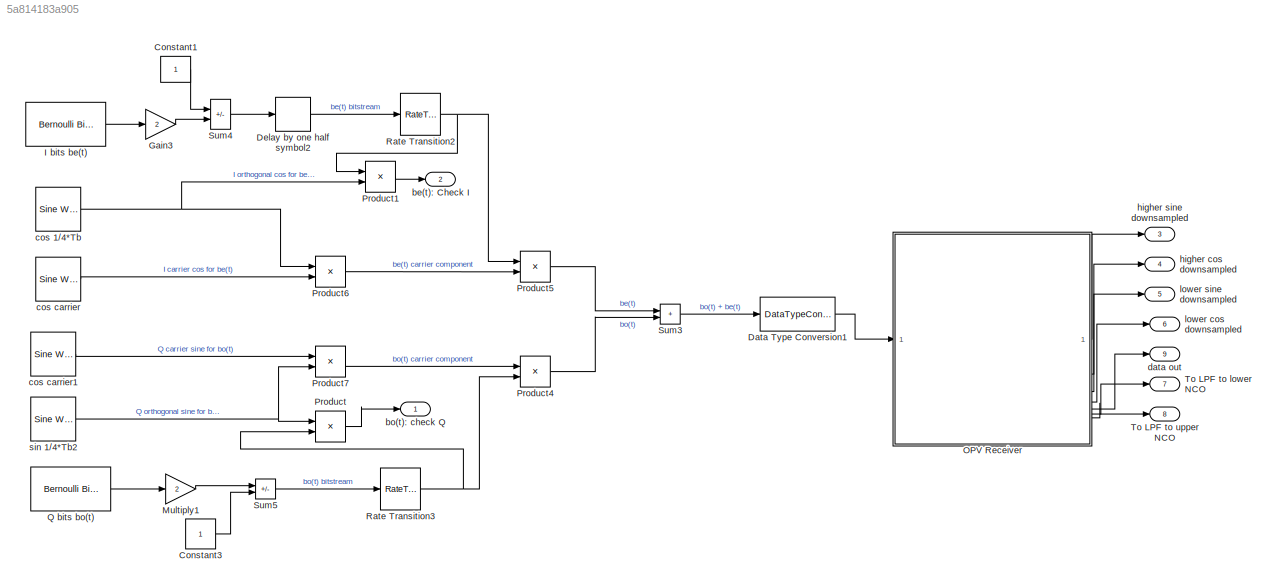
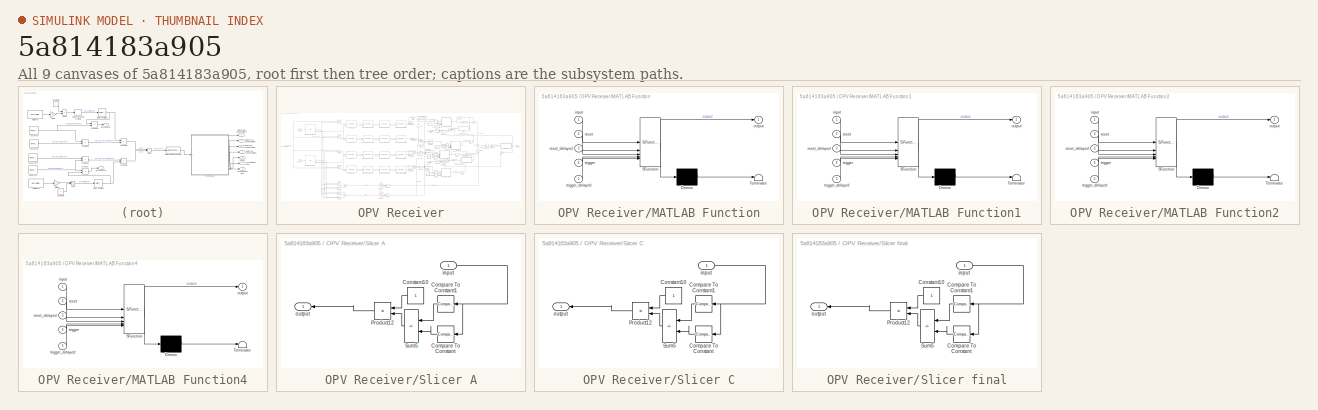
[diagram: thumbnail index - all 9 canvases of the model, root first then tree order]
MODEL slx_5a814183a905
KIND model
CONFIG AbsTol = auto
CONFIG EnableMultiTasking = off
CONFIG FixedStep = auto
CONFIG MaxStep = auto
CONFIG MinStep = auto
CONFIG RelTol = 1e-3
CONFIG SampleTimeConstraint = Unconstrained
CONFIG SolverName = FixedStepDiscrete
CONFIG StartTime = 0.0
CONFIG StopTime = 0.01*(samples_per_frame/sample_rate)
BLOCK [Constant] Constant1
  OutDataTypeStr = double
  SampleTime = 1/symbol_rate
BLOCK [Constant] Constant3
  OutDataTypeStr = double
  SampleTime = 1/symbol_rate
BLOCK [DataTypeConversion] Data Type Conversion1
  OutDataTypeStr = fixdt(1,16,15)
  RndMeth = Floor
  SaturateOnIntegerOverflow = off
BLOCK [Delay] Delay by one half symbol2
  DelayLength = 1
  InputPortMap = u0
  SampleTime = 1/(bits_per_symbol*symbol_rate)
BLOCK [Gain] Gain3
  Gain = 2
  OutDataTypeStr = double
BLOCK [Reference] I bits be(t)  REF=commrandsrc3/Bernoulli Binary
Generator
  SourceBlock = commrandsrc3/Bernoulli Binary\nGenerator
  SourceType = Bernoulli Binary Generator
BLOCK [Gain] Multiply1
  Gain = 2
  OutDataTypeStr = double
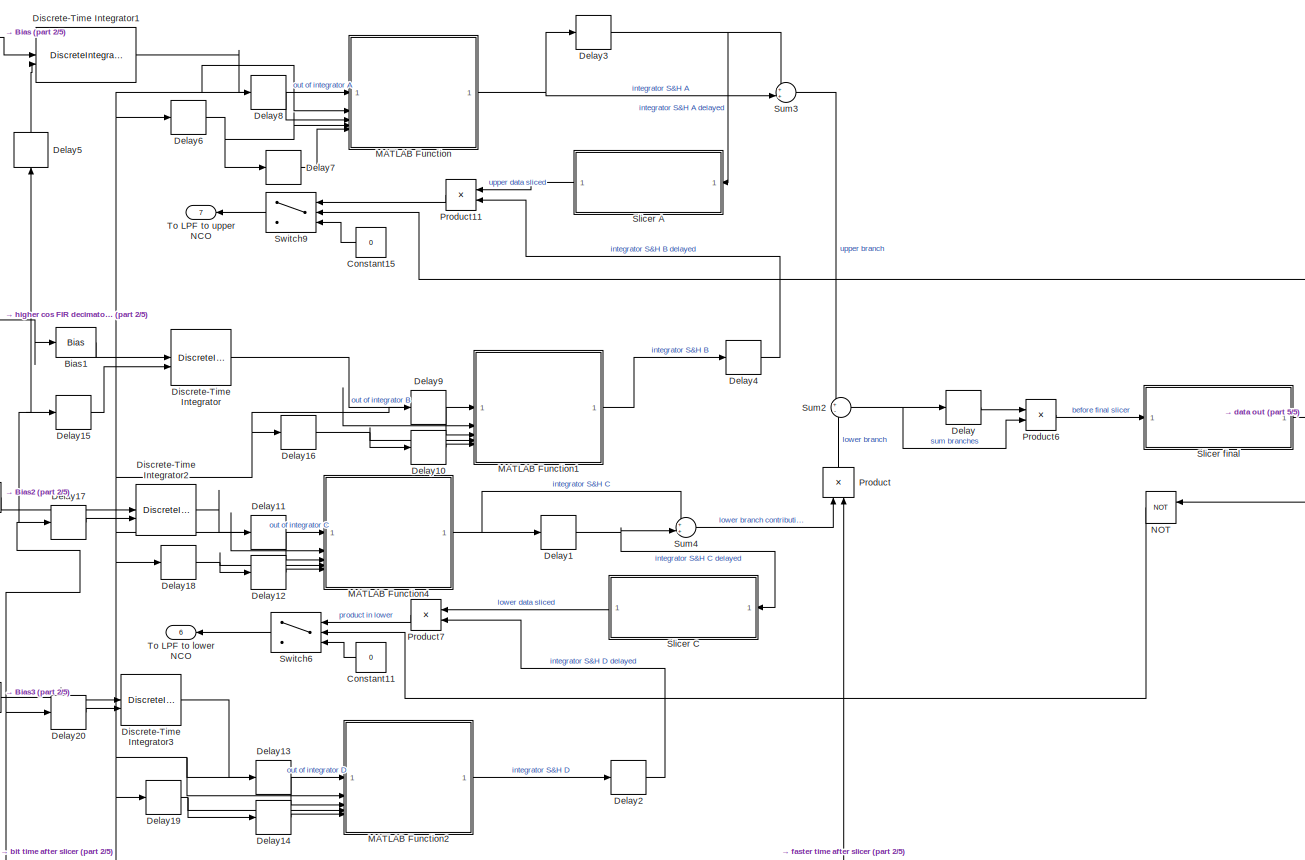
[diagram: OPV Receiver - part 1/5, middle right region]
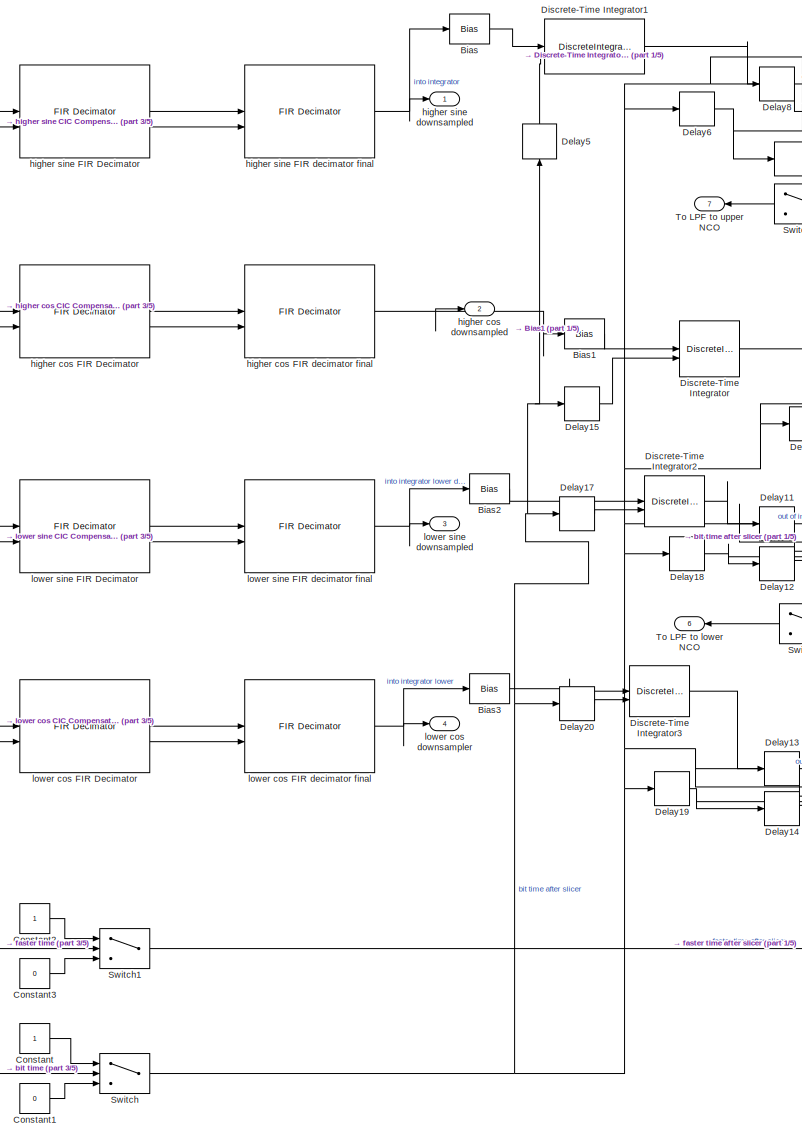
[diagram: OPV Receiver - part 2/5, center side, full height]
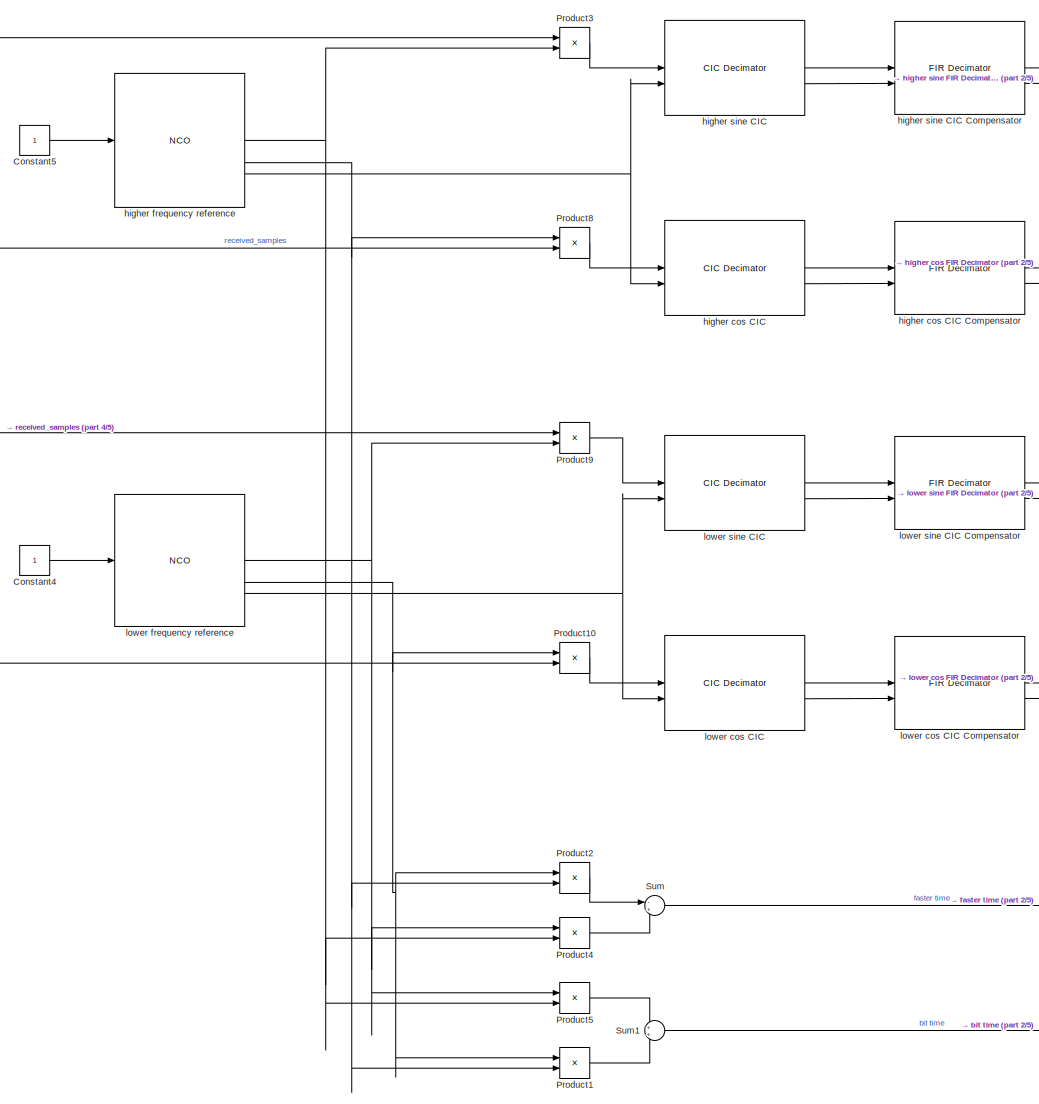
[diagram: OPV Receiver - part 3/5, left side, full height]
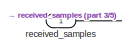
[diagram: OPV Receiver - part 4/5, middle left region]
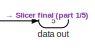
[diagram: OPV Receiver - part 5/5, middle right region]
BLOCK [SubSystem] OPV Receiver
  LibrarySourceBlock = hdlsllib/Ports &\nSubsystems/Subsystem
  TreatAsAtomicUnit = on
BLOCK [Bias] OPV Receiver/Bias
  Bias = bias
BLOCK [Bias] OPV Receiver/Bias1
  Bias = bias
BLOCK [Bias] OPV Receiver/Bias2
  Bias = bias
BLOCK [Bias] OPV Receiver/Bias3
  Bias = bias
BLOCK [Constant] OPV Receiver/Constant
  OutDataTypeStr = fixdt(1,16,15)
BLOCK [Constant] OPV Receiver/Constant1
  OutDataTypeStr = fixdt(1,16,15)
  Value = 0
BLOCK [Constant] OPV Receiver/Constant11
  NameLocation = top
  OutDataTypeStr = fixdt(1,16,15)
  Value = 0
BLOCK [Constant] OPV Receiver/Constant15
  NameLocation = top
  OutDataTypeStr = fixdt(1,16,15)
  Value = 0
BLOCK [Constant] OPV Receiver/Constant2
  OutDataTypeStr = boolean
BLOCK [Constant] OPV Receiver/Constant3
  OutDataTypeStr = boolean
  Value = 0
BLOCK [Constant] OPV Receiver/Constant4
  OutDataTypeStr = boolean
  SampleTime = 1/(device_clock)
BLOCK [Constant] OPV Receiver/Constant5
  OutDataTypeStr = boolean
  SampleTime = 1/(device_clock)
BLOCK [Delay] OPV Receiver/Delay
  DelayLength = delay
  InputPortMap = u0
BLOCK [Delay] OPV Receiver/Delay1
  DelayLength = delay
  InputPortMap = u0
BLOCK [Delay] OPV Receiver/Delay10
  DelayLength = 1
  InputPortMap = u0
BLOCK [Delay] OPV Receiver/Delay11
  DelayLength = 1
  InputPortMap = u0
BLOCK [Delay] OPV Receiver/Delay12
  DelayLength = 1
  InputPortMap = u0
BLOCK [Delay] OPV Receiver/Delay13
  DelayLength = 1
  InputPortMap = u0
BLOCK [Delay] OPV Receiver/Delay14
  DelayLength = 1
  InputPortMap = u0
BLOCK [Delay] OPV Receiver/Delay15
  DelayLength = 10
  InputPortMap = u0
BLOCK [Delay] OPV Receiver/Delay16
  DelayLength = 5
  InputPortMap = u0
BLOCK [Delay] OPV Receiver/Delay17
  DelayLength = 10
  InputPortMap = u0
BLOCK [Delay] OPV Receiver/Delay18
  DelayLength = 5
  InputPortMap = u0
BLOCK [Delay] OPV Receiver/Delay19
  DelayLength = 5
  InputPortMap = u0
BLOCK [Delay] OPV Receiver/Delay2
  DelayLength = delay
  InputPortMap = u0
BLOCK [Delay] OPV Receiver/Delay20
  DelayLength = 10
  InputPortMap = u0
BLOCK [Delay] OPV Receiver/Delay3
  DelayLength = delay
  InputPortMap = u0
BLOCK [Delay] OPV Receiver/Delay4
  DelayLength = delay
  InputPortMap = u0
BLOCK [Delay] OPV Receiver/Delay5
  DelayLength = 10
  InputPortMap = u0
  NameLocation = right
BLOCK [Delay] OPV Receiver/Delay6
  DelayLength = 5
  InputPortMap = u0
BLOCK [Delay] OPV Receiver/Delay7
  DelayLength = 1
  InputPortMap = u0
BLOCK [Delay] OPV Receiver/Delay8
  DelayLength = 1
  InputPortMap = u0
BLOCK [Delay] OPV Receiver/Delay9
  DelayLength = 1
  InputPortMap = u0
BLOCK [DiscreteIntegrator] OPV Receiver/Discrete-Time Integrator
  ExternalReset = either
  ICPrevOutput = DiscIntNeverNeededParam
  ICPrevScaledInput = DiscIntNeverNeededParam
  InitialConditionSetting = Auto
  IntegratorMethod = Accumulation: Trapezoidal
  LimitOutput = on
  LowerSaturationLimit = -1
  OutDataTypeStr = fixdt(1,16,15)
  SampleTime = -1
  SaturateOnIntegerOverflow = on
  ShowSaturationPort = on
  UpperSaturationLimit = 1
  gainval = 1/2^11
BLOCK [DiscreteIntegrator] OPV Receiver/Discrete-Time Integrator1
  ExternalReset = either
  ICPrevOutput = DiscIntNeverNeededParam
  ICPrevScaledInput = DiscIntNeverNeededParam
  InitialConditionSetting = Auto
  IntegratorMethod = Accumulation: Trapezoidal
  LimitOutput = on
  LowerSaturationLimit = -1
  OutDataTypeStr = fixdt(1,16,15)
  SampleTime = -1
  SaturateOnIntegerOverflow = on
  UpperSaturationLimit = 1
  gainval = 1/2^10
BLOCK [DiscreteIntegrator] OPV Receiver/Discrete-Time Integrator2
  ExternalReset = either
  ICPrevOutput = DiscIntNeverNeededParam
  ICPrevScaledInput = DiscIntNeverNeededParam
  InitialConditionSetting = Auto
  IntegratorMethod = Accumulation: Trapezoidal
  LimitOutput = on
  LowerSaturationLimit = -1
  OutDataTypeStr = fixdt(1,16,15)
  SampleTime = -1
  SaturateOnIntegerOverflow = on
  UpperSaturationLimit = 1
  gainval = 1/2^10
BLOCK [DiscreteIntegrator] OPV Receiver/Discrete-Time Integrator3
  ExternalReset = either
  ICPrevOutput = DiscIntNeverNeededParam
  ICPrevScaledInput = DiscIntNeverNeededParam
  InitialConditionSetting = Auto
  IntegratorMethod = Accumulation: Trapezoidal
  LimitOutput = on
  LowerSaturationLimit = -1
  OutDataTypeStr = fixdt(1,16,15)
  SampleTime = -1
  SaturateOnIntegerOverflow = on
  UpperSaturationLimit = 1
  gainval = 1/2^10
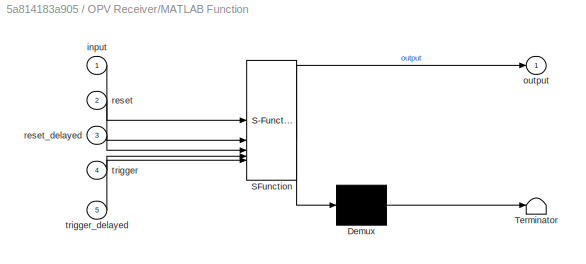
BLOCK [SubSystem] OPV Receiver/MATLAB Function
  ErrorFcn = Stateflow.Translate.translate
  PermitHierarchicalResolution = ExplicitOnly
  SFBlockType = MATLAB Function
  TreatAsAtomicUnit = on
BLOCK [Demux] OPV Receiver/MATLAB Function/ Demux 
  Outputs = 1
BLOCK [S-Function] OPV Receiver/MATLAB Function/ SFunction 
  EnableBusSupport = on
  FunctionName = sf_sfun
  PortCounts = [5 2]
  SFcnIsStateOwnerBlock = off
  SFunctionDeploymentMode = off
  Tag = Stateflow S-Function 2
BLOCK [Terminator] OPV Receiver/MATLAB Function/ Terminator 
BLOCK [Inport] OPV Receiver/MATLAB Function/input
BLOCK [Outport] OPV Receiver/MATLAB Function/output
  VectorParamsAs1DForOutWhenUnconnected = off
BLOCK [Inport] OPV Receiver/MATLAB Function/reset
  Port = 2
BLOCK [Inport] OPV Receiver/MATLAB Function/reset_delayed
  Port = 3
BLOCK [Inport] OPV Receiver/MATLAB Function/trigger
  Port = 4
BLOCK [Inport] OPV Receiver/MATLAB Function/trigger_delayed
  Port = 5
BLOCK [SubSystem] OPV Receiver/MATLAB Function1
  ErrorFcn = Stateflow.Translate.translate
  PermitHierarchicalResolution = ExplicitOnly
  SFBlockType = MATLAB Function
  TreatAsAtomicUnit = on
BLOCK [Demux] OPV Receiver/MATLAB Function1/ Demux 
  Outputs = 1
BLOCK [S-Function] OPV Receiver/MATLAB Function1/ SFunction 
  EnableBusSupport = on
  FunctionName = sf_sfun
  PortCounts = [5 2]
  SFcnIsStateOwnerBlock = off
  SFunctionDeploymentMode = off
  Tag = Stateflow S-Function 1
BLOCK [Terminator] OPV Receiver/MATLAB Function1/ Terminator 
BLOCK [Inport] OPV Receiver/MATLAB Function1/input
BLOCK [Outport] OPV Receiver/MATLAB Function1/output
  VectorParamsAs1DForOutWhenUnconnected = off
BLOCK [Inport] OPV Receiver/MATLAB Function1/reset
  Port = 2
BLOCK [Inport] OPV Receiver/MATLAB Function1/reset_delayed
  Port = 3
BLOCK [Inport] OPV Receiver/MATLAB Function1/trigger
  Port = 4
BLOCK [Inport] OPV Receiver/MATLAB Function1/trigger_delayed
  Port = 5
BLOCK [SubSystem] OPV Receiver/MATLAB Function2
  ErrorFcn = Stateflow.Translate.translate
  PermitHierarchicalResolution = ExplicitOnly
  SFBlockType = MATLAB Function
  TreatAsAtomicUnit = on
BLOCK [Demux] OPV Receiver/MATLAB Function2/ Demux 
  Outputs = 1
BLOCK [S-Function] OPV Receiver/MATLAB Function2/ SFunction 
  EnableBusSupport = on
  FunctionName = sf_sfun
  PortCounts = [5 2]
  SFcnIsStateOwnerBlock = off
  SFunctionDeploymentMode = off
  Tag = Stateflow S-Function 3
BLOCK [Terminator] OPV Receiver/MATLAB Function2/ Terminator 
BLOCK [Inport] OPV Receiver/MATLAB Function2/input
BLOCK [Outport] OPV Receiver/MATLAB Function2/output
  VectorParamsAs1DForOutWhenUnconnected = off
BLOCK [Inport] OPV Receiver/MATLAB Function2/reset
  Port = 2
BLOCK [Inport] OPV Receiver/MATLAB Function2/reset_delayed
  Port = 3
BLOCK [Inport] OPV Receiver/MATLAB Function2/trigger
  Port = 4
BLOCK [Inport] OPV Receiver/MATLAB Function2/trigger_delayed
  Port = 5
BLOCK [SubSystem] OPV Receiver/MATLAB Function4
  ErrorFcn = Stateflow.Translate.translate
  PermitHierarchicalResolution = ExplicitOnly
  SFBlockType = MATLAB Function
  TreatAsAtomicUnit = on
BLOCK [Demux] OPV Receiver/MATLAB Function4/ Demux 
  Outputs = 1
BLOCK [S-Function] OPV Receiver/MATLAB Function4/ SFunction 
  EnableBusSupport = on
  FunctionName = sf_sfun
  PortCounts = [5 2]
  SFcnIsStateOwnerBlock = off
  SFunctionDeploymentMode = off
  Tag = Stateflow S-Function 5
BLOCK [Terminator] OPV Receiver/MATLAB Function4/ Terminator 
BLOCK [Inport] OPV Receiver/MATLAB Function4/input
BLOCK [Outport] OPV Receiver/MATLAB Function4/output
  VectorParamsAs1DForOutWhenUnconnected = off
BLOCK [Inport] OPV Receiver/MATLAB Function4/reset
  Port = 2
BLOCK [Inport] OPV Receiver/MATLAB Function4/reset_delayed
  Port = 3
BLOCK [Inport] OPV Receiver/MATLAB Function4/trigger
  Port = 4
BLOCK [Inport] OPV Receiver/MATLAB Function4/trigger_delayed
  Port = 5
BLOCK [Logic] OPV Receiver/NOT
  AllPortsSameDT = off
  IconShape = distinctive
  NameLocation = top
  Operator = NOT
  OutDataTypeStr = fixdt(1,16,15)
BLOCK [Product] OPV Receiver/Product
  NameLocation = right
BLOCK [Product] OPV Receiver/Product1
BLOCK [Product] OPV Receiver/Product10
BLOCK [Product] OPV Receiver/Product11
  NameLocation = top
BLOCK [Product] OPV Receiver/Product2
BLOCK [Product] OPV Receiver/Product3
BLOCK [Product] OPV Receiver/Product4
BLOCK [Product] OPV Receiver/Product5
BLOCK [Product] OPV Receiver/Product6
BLOCK [Product] OPV Receiver/Product7
  NameLocation = top
BLOCK [Product] OPV Receiver/Product8
BLOCK [Product] OPV Receiver/Product9
BLOCK [SubSystem] OPV Receiver/Slicer A
  NameLocation = top
BLOCK [Reference] OPV Receiver/Slicer A/Compare To Constant  REF=hdlsllib/Logic and Bit
Operations/Compare
To Constant
  NameLocation = top
  SourceBlock = hdlsllib/Logic and Bit\nOperations/Compare\nTo Constant
  SourceType = Compare To Constant
BLOCK [Reference] OPV Receiver/Slicer A/Compare To Constant1  REF=hdlsllib/Logic and Bit
Operations/Compare
To Constant
  NameLocation = top
  SourceBlock = hdlsllib/Logic and Bit\nOperations/Compare\nTo Constant
  SourceType = Compare To Constant
BLOCK [Constant] OPV Receiver/Slicer A/Constant10
  NameLocation = top
  OutDataTypeStr = fixdt(1,16,15)
BLOCK [Product] OPV Receiver/Slicer A/Product12
  NameLocation = top
BLOCK [Sum] OPV Receiver/Slicer A/Sum5
  IconShape = rectangular
  Inputs = +-|
  NameLocation = top
BLOCK [Inport] OPV Receiver/Slicer A/input
BLOCK [Outport] OPV Receiver/Slicer A/output
BLOCK [SubSystem] OPV Receiver/Slicer C
  NameLocation = top
BLOCK [Reference] OPV Receiver/Slicer C/Compare To Constant  REF=hdlsllib/Logic and Bit
Operations/Compare
To Constant
  NameLocation = top
  SourceBlock = hdlsllib/Logic and Bit\nOperations/Compare\nTo Constant
  SourceType = Compare To Constant
BLOCK [Reference] OPV Receiver/Slicer C/Compare To Constant1  REF=hdlsllib/Logic and Bit
Operations/Compare
To Constant
  NameLocation = top
  SourceBlock = hdlsllib/Logic and Bit\nOperations/Compare\nTo Constant
  SourceType = Compare To Constant
BLOCK [Constant] OPV Receiver/Slicer C/Constant10
  NameLocation = top
  OutDataTypeStr = fixdt(1,16,15)
BLOCK [Product] OPV Receiver/Slicer C/Product12
  NameLocation = top
BLOCK [Sum] OPV Receiver/Slicer C/Sum5
  IconShape = rectangular
  Inputs = +-|
  NameLocation = top
BLOCK [Inport] OPV Receiver/Slicer C/input
BLOCK [Outport] OPV Receiver/Slicer C/output
BLOCK [SubSystem] OPV Receiver/Slicer final
BLOCK [Reference] OPV Receiver/Slicer final/Compare To Constant  REF=hdlsllib/Logic and Bit
Operations/Compare
To Constant
  NameLocation = top
  SourceBlock = hdlsllib/Logic and Bit\nOperations/Compare\nTo Constant
  SourceType = Compare To Constant
BLOCK [Reference] OPV Receiver/Slicer final/Compare To Constant1  REF=hdlsllib/Logic and Bit
Operations/Compare
To Constant
  NameLocation = top
  SourceBlock = hdlsllib/Logic and Bit\nOperations/Compare\nTo Constant
  SourceType = Compare To Constant
BLOCK [Constant] OPV Receiver/Slicer final/Constant10
  NameLocation = top
  OutDataTypeStr = fixdt(1,16,15)
BLOCK [Product] OPV Receiver/Slicer final/Product12
  NameLocation = top
BLOCK [Sum] OPV Receiver/Slicer final/Sum5
  IconShape = rectangular
  Inputs = +-|
  NameLocation = top
BLOCK [Inport] OPV Receiver/Slicer final/input
BLOCK [Outport] OPV Receiver/Slicer final/output
BLOCK [Sum] OPV Receiver/Sum
  Inputs = -+
BLOCK [Sum] OPV Receiver/Sum1
BLOCK [Sum] OPV Receiver/Sum2
  Inputs = +-
BLOCK [Sum] OPV Receiver/Sum3
  Inputs = ++|
BLOCK [Sum] OPV Receiver/Sum4
  Inputs = ++|
BLOCK [Switch] OPV Receiver/Switch
  InputSameDT = off
  SaturateOnIntegerOverflow = off
BLOCK [Switch] OPV Receiver/Switch1
  InputSameDT = off
  SaturateOnIntegerOverflow = off
BLOCK [Switch] OPV Receiver/Switch6
  InputSameDT = off
  NameLocation = top
  SaturateOnIntegerOverflow = off
BLOCK [Switch] OPV Receiver/Switch9
  InputSameDT = off
  NameLocation = top
  SaturateOnIntegerOverflow = off
BLOCK [Outport] OPV Receiver/To LPF to lower NCO
  NameLocation = top
  Port = 6
BLOCK [Outport] OPV Receiver/To LPF to upper NCO
  NameLocation = top
  Port = 7
BLOCK [Outport] OPV Receiver/data out
  Port = 5
BLOCK [Reference] OPV Receiver/higher cos CIC  REF=dsphdlfiltering2/CIC Decimator
  Commented = through
  SourceBlock = dsphdlfiltering2/CIC Decimator
  SourceType = CIC Decimator
BLOCK [Reference] OPV Receiver/higher cos CIC Compensator  REF=dsphdlfiltering2/FIR Decimator
  Commented = through
  SourceBlock = dsphdlfiltering2/FIR Decimator
  SourceType = FIR Decimator
BLOCK [Reference] OPV Receiver/higher cos FIR Decimator  REF=dsphdlfiltering2/FIR Decimator
  Commented = through
  SourceBlock = dsphdlfiltering2/FIR Decimator
  SourceType = FIR Decimator
BLOCK [Reference] OPV Receiver/higher cos FIR decimator final  REF=dsphdlfiltering2/FIR Decimator
  Commented = through
  SourceBlock = dsphdlfiltering2/FIR Decimator
  SourceType = FIR Decimator
BLOCK [Outport] OPV Receiver/higher cos downsampled
  Port = 2
BLOCK [Reference] OPV Receiver/higher frequency reference  REF=dsphdlsigops2/NCO
  LibrarySourceBlock = dsphdlsrcs2/NCO
  SourceBlock = dsphdlsigops2/NCO
  SourceType = NCO
BLOCK [Reference] OPV Receiver/higher sine CIC  REF=dsphdlfiltering2/CIC Decimator
  Commented = through
  SourceBlock = dsphdlfiltering2/CIC Decimator
  SourceType = CIC Decimator
BLOCK [Reference] OPV Receiver/higher sine CIC Compensator  REF=dsphdlfiltering2/FIR Decimator
  Commented = through
  SourceBlock = dsphdlfiltering2/FIR Decimator
  SourceType = FIR Decimator
BLOCK [Reference] OPV Receiver/higher sine FIR Decimator  REF=dsphdlfiltering2/FIR Decimator
  Commented = through
  SourceBlock = dsphdlfiltering2/FIR Decimator
  SourceType = FIR Decimator
BLOCK [Reference] OPV Receiver/higher sine FIR decimator final  REF=dsphdlfiltering2/FIR Decimator
  Commented = through
  SourceBlock = dsphdlfiltering2/FIR Decimator
  SourceType = FIR Decimator
BLOCK [Outport] OPV Receiver/higher sine downsampled
BLOCK [Reference] OPV Receiver/lower cos CIC  REF=dsphdlfiltering2/CIC Decimator
  Commented = through
  SourceBlock = dsphdlfiltering2/CIC Decimator
  SourceType = CIC Decimator
BLOCK [Reference] OPV Receiver/lower cos CIC Compensator  REF=dsphdlfiltering2/FIR Decimator
  Commented = through
  SourceBlock = dsphdlfiltering2/FIR Decimator
  SourceType = FIR Decimator
BLOCK [Reference] OPV Receiver/lower cos FIR Decimator  REF=dsphdlfiltering2/FIR Decimator
  Commented = through
  SourceBlock = dsphdlfiltering2/FIR Decimator
  SourceType = FIR Decimator
BLOCK [Reference] OPV Receiver/lower cos FIR decimator final  REF=dsphdlfiltering2/FIR Decimator
  Commented = through
  SourceBlock = dsphdlfiltering2/FIR Decimator
  SourceType = FIR Decimator
BLOCK [Outport] OPV Receiver/lower cos downsampler
  Port = 4
BLOCK [Reference] OPV Receiver/lower frequency reference  REF=dsphdlsigops2/NCO
  LibrarySourceBlock = dsphdlsrcs2/NCO
  SourceBlock = dsphdlsigops2/NCO
  SourceType = NCO
BLOCK [Reference] OPV Receiver/lower sine CIC  REF=dsphdlfiltering2/CIC Decimator
  Commented = through
  SourceBlock = dsphdlfiltering2/CIC Decimator
  SourceType = CIC Decimator
BLOCK [Reference] OPV Receiver/lower sine CIC Compensator  REF=dsphdlfiltering2/FIR Decimator
  Commented = through
  SourceBlock = dsphdlfiltering2/FIR Decimator
  SourceType = FIR Decimator
BLOCK [Reference] OPV Receiver/lower sine FIR Decimator  REF=dsphdlfiltering2/FIR Decimator
  Commented = through
  SourceBlock = dsphdlfiltering2/FIR Decimator
  SourceType = FIR Decimator
BLOCK [Reference] OPV Receiver/lower sine FIR decimator final  REF=dsphdlfiltering2/FIR Decimator
  Commented = through
  SourceBlock = dsphdlfiltering2/FIR Decimator
  SourceType = FIR Decimator
BLOCK [Outport] OPV Receiver/lower sine downsampled
  Port = 3
BLOCK [Inport] OPV Receiver/received_samples
BLOCK [Product] Product
BLOCK [Product] Product1
BLOCK [Product] Product4
BLOCK [Product] Product5
BLOCK [Product] Product6
  OutDataTypeStr = double
BLOCK [Product] Product7
  OutDataTypeStr = double
BLOCK [Reference] Q bits bo(t)  REF=commrandsrc3/Bernoulli Binary
Generator
  SourceBlock = commrandsrc3/Bernoulli Binary\nGenerator
  SourceType = Bernoulli Binary Generator
BLOCK [RateTransition] Rate Transition2
  Deterministic = off
  OutPortSampleTime = 1/device_clock
  OutPortSampleTimeMultiple = device_clock/symbol_rate
BLOCK [RateTransition] Rate Transition3
  Deterministic = off
  OutPortSampleTime = 1/device_clock
  OutPortSampleTimeMultiple = device_clock/symbol_rate
BLOCK [Sum] Sum3
  AccumDataTypeStr = double
  IconShape = rectangular
BLOCK [Sum] Sum4
  AccumDataTypeStr = double
  IconShape = rectangular
  Inputs = |-+
BLOCK [Sum] Sum5
  AccumDataTypeStr = double
  IconShape = rectangular
  Inputs = |+-
BLOCK [Outport] To LPF to lower NCO
  Port = 7
BLOCK [Outport] To LPF to upper NCO
  Port = 8
BLOCK [Outport] be(t): Check I
  Port = 2
BLOCK [Outport] bo(t): check Q
BLOCK [Reference] cos 1//4*Tb  REF=dspsrcs4/Sine Wave
  LibrarySourceBlock = dsphdlsupportsrcs/Sine Wave
  SourceBlock = dspsrcs4/Sine Wave
  SourceType = Sine Wave
BLOCK [Reference] cos carrier  REF=dspsrcs4/Sine Wave
  LibrarySourceBlock = dsphdlsupportsrcs/Sine Wave
  SourceBlock = dspsrcs4/Sine Wave
  SourceType = Sine Wave
BLOCK [Reference] cos carrier1  REF=dspsrcs4/Sine Wave
  LibrarySourceBlock = dsphdlsupportsrcs/Sine Wave
  SourceBlock = dspsrcs4/Sine Wave
  SourceType = Sine Wave
BLOCK [Outport] data out
  Port = 9
BLOCK [Outport] higher cos downsampled
  Port = 4
BLOCK [Outport] higher sine downsampled
  Port = 3
BLOCK [Outport] lower cos downsampled
  Port = 6
BLOCK [Outport] lower sine downsampled
  Port = 5
BLOCK [Reference] sin 1//4*Tb2  REF=dspsrcs4/Sine Wave
  LibrarySourceBlock = dsphdlsupportsrcs/Sine Wave
  SourceBlock = dspsrcs4/Sine Wave
  SourceType = Sine Wave
LINE Constant1:1 -> Sum4:1
LINE Constant3:1 -> Sum5:2
LINE Data Type Conversion1:1 -> OPV Receiver:1
LINE Delay by one half symbol2:1 -> Rate Transition2:1
LINE Gain3:1 -> Sum4:2
LINE I bits be(t):1 -> Gain3:1
LINE Multiply1:1 -> Sum5:1
LINE OPV Receiver/Bias1:1 -> OPV Receiver/Discrete-Time Integrator:1
LINE OPV Receiver/Bias2:1 -> OPV Receiver/Discrete-Time Integrator2:1
LINE OPV Receiver/Bias3:1 -> OPV Receiver/Discrete-Time Integrator3:1
LINE OPV Receiver/Bias:1 -> OPV Receiver/Discrete-Time Integrator1:1
LINE OPV Receiver/Constant11:1 -> OPV Receiver/Switch6:3
LINE OPV Receiver/Constant15:1 -> OPV Receiver/Switch9:3
LINE OPV Receiver/Constant1:1 -> OPV Receiver/Switch:3
LINE OPV Receiver/Constant2:1 -> OPV Receiver/Switch1:1
LINE OPV Receiver/Constant3:1 -> OPV Receiver/Switch1:3
LINE OPV Receiver/Constant4:1 -> OPV Receiver/lower frequency reference:1
LINE OPV Receiver/Constant5:1 -> OPV Receiver/higher frequency reference:1
LINE OPV Receiver/Constant:1 -> OPV Receiver/Switch:1
LINE OPV Receiver/Delay10:1 -> OPV Receiver/MATLAB Function1:5
LINE OPV Receiver/Delay11:1 -> OPV Receiver/MATLAB Function4:3
LINE OPV Receiver/Delay12:1 -> OPV Receiver/MATLAB Function4:5
LINE OPV Receiver/Delay13:1 -> OPV Receiver/MATLAB Function2:3
LINE OPV Receiver/Delay14:1 -> OPV Receiver/MATLAB Function2:5
LINE OPV Receiver/Delay15:1 -> OPV Receiver/Discrete-Time Integrator:2
NET OPV Receiver/Delay16:1 -> OPV Receiver/Delay10:1, OPV Receiver/MATLAB Function1:4
LINE OPV Receiver/Delay17:1 -> OPV Receiver/Discrete-Time Integrator2:2
NET OPV Receiver/Delay18:1 -> OPV Receiver/Delay12:1, OPV Receiver/MATLAB Function4:4
NET OPV Receiver/Delay19:1 -> OPV Receiver/Delay14:1, OPV Receiver/MATLAB Function2:4
NET OPV Receiver/Delay1:1 -> OPV Receiver/Slicer C:1, OPV Receiver/Sum4:2
LINE OPV Receiver/Delay20:1 -> OPV Receiver/Discrete-Time Integrator3:2
LINE OPV Receiver/Delay2:1 -> OPV Receiver/Product7:2
NET OPV Receiver/Delay3:1 -> OPV Receiver/Slicer A:1, OPV Receiver/Sum3:1
LINE OPV Receiver/Delay4:1 -> OPV Receiver/Product11:2
LINE OPV Receiver/Delay5:1 -> OPV Receiver/Discrete-Time Integrator1:2
NET OPV Receiver/Delay6:1 -> OPV Receiver/Delay7:1, OPV Receiver/MATLAB Function:4
LINE OPV Receiver/Delay7:1 -> OPV Receiver/MATLAB Function:5
LINE OPV Receiver/Delay8:1 -> OPV Receiver/MATLAB Function:3
LINE OPV Receiver/Delay9:1 -> OPV Receiver/MATLAB Function1:3
LINE OPV Receiver/Delay:1 -> OPV Receiver/Product6:1
LINE OPV Receiver/Discrete-Time Integrator1:1 -> OPV Receiver/MATLAB Function:1
LINE OPV Receiver/Discrete-Time Integrator2:1 -> OPV Receiver/MATLAB Function4:1
LINE OPV Receiver/Discrete-Time Integrator3:1 -> OPV Receiver/MATLAB Function2:1
LINE OPV Receiver/Discrete-Time Integrator:1 -> OPV Receiver/MATLAB Function1:1
LINE OPV Receiver/MATLAB Function1:1 -> OPV Receiver/Delay4:1
LINE OPV Receiver/MATLAB Function2:1 -> OPV Receiver/Delay2:1
NET OPV Receiver/MATLAB Function4:1 -> OPV Receiver/Delay1:1, OPV Receiver/Sum4:1
NET OPV Receiver/MATLAB Function:1 -> OPV Receiver/Delay3:1, OPV Receiver/Sum3:2
LINE OPV Receiver/NOT:1 -> OPV Receiver/Switch6:2
LINE OPV Receiver/Product10:1 -> OPV Receiver/lower cos CIC:1
LINE OPV Receiver/Product11:1 -> OPV Receiver/Switch9:1
LINE OPV Receiver/Product1:1 -> OPV Receiver/Sum1:2
LINE OPV Receiver/Product2:1 -> OPV Receiver/Sum:1
LINE OPV Receiver/Product3:1 -> OPV Receiver/higher sine CIC:1
LINE OPV Receiver/Product4:1 -> OPV Receiver/Sum:2
LINE OPV Receiver/Product5:1 -> OPV Receiver/Sum1:1
LINE OPV Receiver/Product6:1 -> OPV Receiver/Slicer final:1
LINE OPV Receiver/Product7:1 -> OPV Receiver/Switch6:1
LINE OPV Receiver/Product8:1 -> OPV Receiver/higher cos CIC:1
LINE OPV Receiver/Product9:1 -> OPV Receiver/lower sine CIC:1
LINE OPV Receiver/Product:1 -> OPV Receiver/Sum2:2
LINE OPV Receiver/Slicer A/Compare To Constant1:1 -> OPV Receiver/Slicer A/Sum5:1
LINE OPV Receiver/Slicer A/Compare To Constant:1 -> OPV Receiver/Slicer A/Sum5:2
LINE OPV Receiver/Slicer A/Constant10:1 -> OPV Receiver/Slicer A/Product12:1
LINE OPV Receiver/Slicer A/Product12:1 -> OPV Receiver/Slicer A/output:1
LINE OPV Receiver/Slicer A/Sum5:1 -> OPV Receiver/Slicer A/Product12:2
NET OPV Receiver/Slicer A/input:1 -> OPV Receiver/Slicer A/Compare To Constant1:1, OPV Receiver/Slicer A/Compare To Constant:1
LINE OPV Receiver/Slicer A:1 -> OPV Receiver/Product11:1
LINE OPV Receiver/Slicer C/Compare To Constant1:1 -> OPV Receiver/Slicer C/Sum5:1
LINE OPV Receiver/Slicer C/Compare To Constant:1 -> OPV Receiver/Slicer C/Sum5:2
LINE OPV Receiver/Slicer C/Constant10:1 -> OPV Receiver/Slicer C/Product12:1
LINE OPV Receiver/Slicer C/Product12:1 -> OPV Receiver/Slicer C/output:1
LINE OPV Receiver/Slicer C/Sum5:1 -> OPV Receiver/Slicer C/Product12:2
NET OPV Receiver/Slicer C/input:1 -> OPV Receiver/Slicer C/Compare To Constant1:1, OPV Receiver/Slicer C/Compare To Constant:1
LINE OPV Receiver/Slicer C:1 -> OPV Receiver/Product7:1
LINE OPV Receiver/Slicer final/Compare To Constant1:1 -> OPV Receiver/Slicer final/Sum5:1
LINE OPV Receiver/Slicer final/Compare To Constant:1 -> OPV Receiver/Slicer final/Sum5:2
LINE OPV Receiver/Slicer final/Constant10:1 -> OPV Receiver/Slicer final/Product12:1
LINE OPV Receiver/Slicer final/Product12:1 -> OPV Receiver/Slicer final/output:1
LINE OPV Receiver/Slicer final/Sum5:1 -> OPV Receiver/Slicer final/Product12:2
NET OPV Receiver/Slicer final/input:1 -> OPV Receiver/Slicer final/Compare To Constant1:1, OPV Receiver/Slicer final/Compare To Constant:1
NET OPV Receiver/Slicer final:1 -> OPV Receiver/NOT:1, OPV Receiver/Switch9:2, OPV Receiver/data out:1
LINE OPV Receiver/Sum1:1 -> OPV Receiver/Switch:2
NET OPV Receiver/Sum2:1 -> OPV Receiver/Delay:1, OPV Receiver/Product6:2
LINE OPV Receiver/Sum3:1 -> OPV Receiver/Sum2:1
LINE OPV Receiver/Sum4:1 -> OPV Receiver/Product:1
LINE OPV Receiver/Sum:1 -> OPV Receiver/Switch1:2
LINE OPV Receiver/Switch1:1 -> OPV Receiver/Product:2
LINE OPV Receiver/Switch6:1 -> OPV Receiver/To LPF to lower NCO:1
LINE OPV Receiver/Switch9:1 -> OPV Receiver/To LPF to upper NCO:1
NET OPV Receiver/Switch:1 -> OPV Receiver/Delay11:1, OPV Receiver/Delay13:1, OPV Receiver/Delay15:1, OPV Receiver/Delay16:1, OPV Receiver/Delay17:1, OPV Receiver/Delay18:1, OPV Receiver/Delay19:1, OPV Receiver/Delay20:1, OPV Receiver/Delay5:1, OPV Receiver/Delay6:1, OPV Receiver/Delay8:1, OPV Receiver/Delay9:1, OPV Receiver/MATLAB Function1:2, OPV Receiver/MATLAB Function2:2, OPV Receiver/MATLAB Function4:2, OPV Receiver/MATLAB Function:2
LINE OPV Receiver/higher cos CIC Compensator:1 -> OPV Receiver/higher cos FIR Decimator:1
LINE OPV Receiver/higher cos CIC Compensator:2 -> OPV Receiver/higher cos FIR Decimator:2
LINE OPV Receiver/higher cos CIC:1 -> OPV Receiver/higher cos CIC Compensator:1
LINE OPV Receiver/higher cos CIC:2 -> OPV Receiver/higher cos CIC Compensator:2
LINE OPV Receiver/higher cos FIR Decimator:1 -> OPV Receiver/higher cos FIR decimator final:1
LINE OPV Receiver/higher cos FIR Decimator:2 -> OPV Receiver/higher cos FIR decimator final:2
NET OPV Receiver/higher cos FIR decimator final:1 -> OPV Receiver/Bias1:1, OPV Receiver/higher cos downsampled:1
NET OPV Receiver/higher frequency reference:1 -> OPV Receiver/Product3:2, OPV Receiver/Product4:2, OPV Receiver/Product5:2
NET OPV Receiver/higher frequency reference:2 -> OPV Receiver/Product1:2, OPV Receiver/Product2:2, OPV Receiver/Product8:1
NET OPV Receiver/higher frequency reference:3 -> OPV Receiver/higher cos CIC:2, OPV Receiver/higher sine CIC:2
LINE OPV Receiver/higher sine CIC Compensator:1 -> OPV Receiver/higher sine FIR Decimator:1
LINE OPV Receiver/higher sine CIC Compensator:2 -> OPV Receiver/higher sine FIR Decimator:2
LINE OPV Receiver/higher sine CIC:1 -> OPV Receiver/higher sine CIC Compensator:1
LINE OPV Receiver/higher sine CIC:2 -> OPV Receiver/higher sine CIC Compensator:2
LINE OPV Receiver/higher sine FIR Decimator:1 -> OPV Receiver/higher sine FIR decimator final:1
LINE OPV Receiver/higher sine FIR Decimator:2 -> OPV Receiver/higher sine FIR decimator final:2
NET OPV Receiver/higher sine FIR decimator final:1 -> OPV Receiver/Bias:1, OPV Receiver/higher sine downsampled:1
LINE OPV Receiver/lower cos CIC Compensator:1 -> OPV Receiver/lower cos FIR Decimator:1
LINE OPV Receiver/lower cos CIC Compensator:2 -> OPV Receiver/lower cos FIR Decimator:2
LINE OPV Receiver/lower cos CIC:1 -> OPV Receiver/lower cos CIC Compensator:1
LINE OPV Receiver/lower cos CIC:2 -> OPV Receiver/lower cos CIC Compensator:2
LINE OPV Receiver/lower cos FIR Decimator:1 -> OPV Receiver/lower cos FIR decimator final:1
LINE OPV Receiver/lower cos FIR Decimator:2 -> OPV Receiver/lower cos FIR decimator final:2
NET OPV Receiver/lower cos FIR decimator final:1 -> OPV Receiver/Bias3:1, OPV Receiver/lower cos downsampler:1
NET OPV Receiver/lower frequency reference:1 -> OPV Receiver/Product4:1, OPV Receiver/Product5:1, OPV Receiver/Product9:2
NET OPV Receiver/lower frequency reference:2 -> OPV Receiver/Product10:1, OPV Receiver/Product1:1, OPV Receiver/Product2:1
NET OPV Receiver/lower frequency reference:3 -> OPV Receiver/lower cos CIC:2, OPV Receiver/lower sine CIC:2
LINE OPV Receiver/lower sine CIC Compensator:1 -> OPV Receiver/lower sine FIR Decimator:1
LINE OPV Receiver/lower sine CIC Compensator:2 -> OPV Receiver/lower sine FIR Decimator:2
LINE OPV Receiver/lower sine CIC:1 -> OPV Receiver/lower sine CIC Compensator:1
LINE OPV Receiver/lower sine CIC:2 -> OPV Receiver/lower sine CIC Compensator:2
LINE OPV Receiver/lower sine FIR Decimator:1 -> OPV Receiver/lower sine FIR decimator final:1
LINE OPV Receiver/lower sine FIR Decimator:2 -> OPV Receiver/lower sine FIR decimator final:2
NET OPV Receiver/lower sine FIR decimator final:1 -> OPV Receiver/Bias2:1, OPV Receiver/lower sine downsampled:1
NET OPV Receiver/received_samples:1 -> OPV Receiver/Product10:2, OPV Receiver/Product3:1, OPV Receiver/Product8:2, OPV Receiver/Product9:1
LINE OPV Receiver:1 -> higher sine downsampled:1
LINE OPV Receiver:2 -> higher cos downsampled:1
LINE OPV Receiver:3 -> lower sine downsampled:1
LINE OPV Receiver:4 -> lower cos downsampled:1
LINE OPV Receiver:5 -> data out:1
LINE OPV Receiver:6 -> To LPF to lower NCO:1
LINE OPV Receiver:7 -> To LPF to upper NCO:1
LINE Product1:1 -> be(t): Check I:1
LINE Product4:1 -> Sum3:2
LINE Product5:1 -> Sum3:1
LINE Product6:1 -> Product5:2
LINE Product7:1 -> Product4:1
LINE Product:1 -> bo(t): check Q:1
LINE Q bits bo(t):1 -> Multiply1:1
NET Rate Transition2:1 -> Product1:1, Product5:1
NET Rate Transition3:1 -> Product4:2, Product:2
LINE Sum3:1 -> Data Type Conversion1:1
LINE Sum4:1 -> Delay by one half symbol2:1
LINE Sum5:1 -> Rate Transition3:1
NET cos 1//4*Tb:1 -> Product1:2, Product6:1
LINE cos carrier1:1 -> Product7:1
LINE cos carrier:1 -> Product6:2
NET sin 1//4*Tb2:1 -> Product7:2, Product:1
note: NET lines group one-source signal fan-out (src -> all destinations, sorted); 1:1 wires keep LINE
CHART OPV Receiver/MATLAB Function1 states=1 transitions=1
  STATE_LABEL 'eML_blk_kernel()'
  STATE_LABEL 'SCRIPT:\nfunction output   = resettable_sample_and_hold(input, reset, reset_delayed, trigger, trigger_delayed)\n%#codegen\n\n%Resettable Sample and Hold Circuit\n% This was written because S&H within Resettable Subsystems in Simulink\n% is not supported by HDL Coder. We needed this functionality, so this\n% custom function was written. \n\n%possible bug - reset and trigger may need to be reversed. There is...<+2205ch>'  <repeated x4 — deduplicated; at blocks: MATLAB Function1, MATLAB Function, MATLAB Function2, MATLAB Function4>
CHART OPV Receiver/MATLAB Function states=1 transitions=1
  STATE_LABEL 'eML_blk_kernel()'
CHART OPV Receiver/MATLAB Function2 states=1 transitions=1
  STATE_LABEL 'eML_blk_kernel()'
CHART OPV Receiver/MATLAB Function4 states=1 transitions=1
  STATE_LABEL 'eML_blk_kernel()'
CHART  states=0 transitions=0
CHART  states=0 transitions=0
CHART  states=0 transitions=0
CHART  states=0 transitions=0
